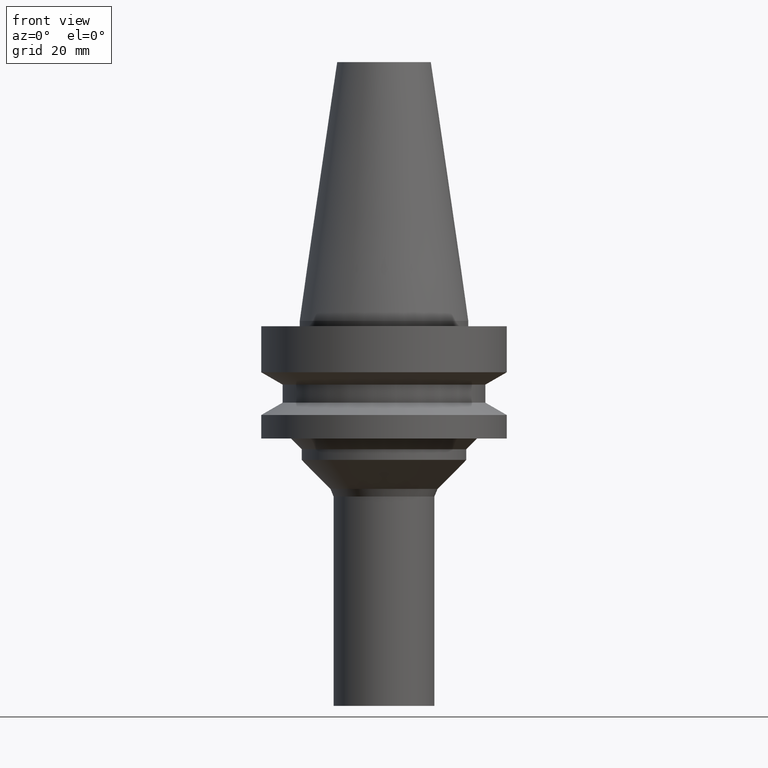
[diagram: clean part render]
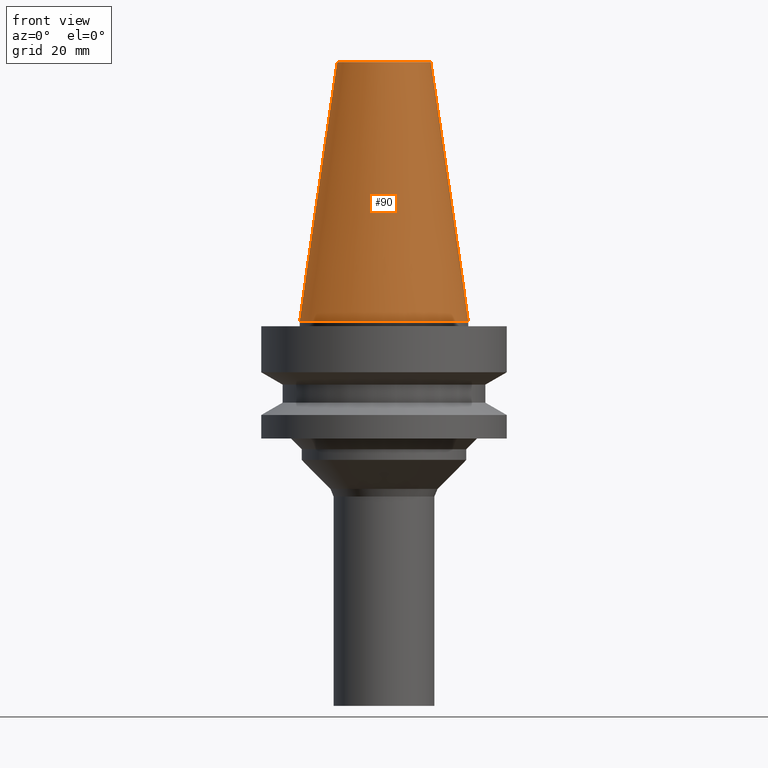
[diagram: same view with one face highlighted and labeled with its STEP entity id]
A machine part, front view. The second image highlights one B-rep face of the part: STEP entity #90.
In plain terms, the highlighted conical surface has half-angle 8.297 deg.
Its self-contained STEP definition (entity closure, byte-faithful):
#90=ADVANCED_FACE('',(#135,#136),#137,.T.);
#135=FACE_BOUND('',#181,.T.);
#136=FACE_BOUND('',#182,.T.);
#137=CONICAL_SURFACE('',#183,12.3457500000001,0.144815870053811);
#181=EDGE_LOOP('',(#257));
#182=EDGE_LOOP('',(#258));
#183=AXIS2_PLACEMENT_3D('',#259,#260,#261);
#257=ORIENTED_EDGE('',*,*,#262,.F.);
#258=ORIENTED_EDGE('',*,*,#276,.T.);
#259=CARTESIAN_POINT('',(-1.48182262696827E-015,-2.96364525393654E-015,24.1999999999996));
#260=DIRECTION('',(6.12323399573677E-017,1.22464679914735E-016,-1.0));
#261=DIRECTION('',(-1.23259516440783E-032,1.0,1.22464679914735E-016));
#262=EDGE_CURVE('',#277,#277,#278,.T.);
#276=EDGE_CURVE('',#305,#305,#306,.T.);
#277=VERTEX_POINT('',#307);
#278=CIRCLE('',#308,8.81650000000002);
#305=VERTEX_POINT('',#335);
#306=CIRCLE('',#336,15.8750000000001);
#307=CARTESIAN_POINT('',(-2.96364525393659E-015,8.81650000000001,48.4));
#308=AXIS2_PLACEMENT_3D('',#337,#338,#339);
#335=CARTESIAN_POINT('',(5.29417501326539E-029,15.8750000000001,-8.65855873206354E-013));
#336=AXIS2_PLACEMENT_3D('',#379,#380,#381);
#337=CARTESIAN_POINT('',(-2.96364525393659E-015,-5.92729050787319E-015,48.4));
#338=DIRECTION('',(-6.12323399573677E-017,-1.22464679914735E-016,1.0));
#339=DIRECTION('',(-1.23259516440783E-032,1.0,1.22464679914735E-016));
#379=CARTESIAN_POINT('',(5.30799971073666E-029,1.06159994214733E-028,-8.66862137627322E-013));
#380=DIRECTION('',(-6.12323399573676E-017,-1.22464679914735E-016,1.0));
#381=DIRECTION('',(-1.23259516440783E-032,1.0,1.22464679914735E-016));